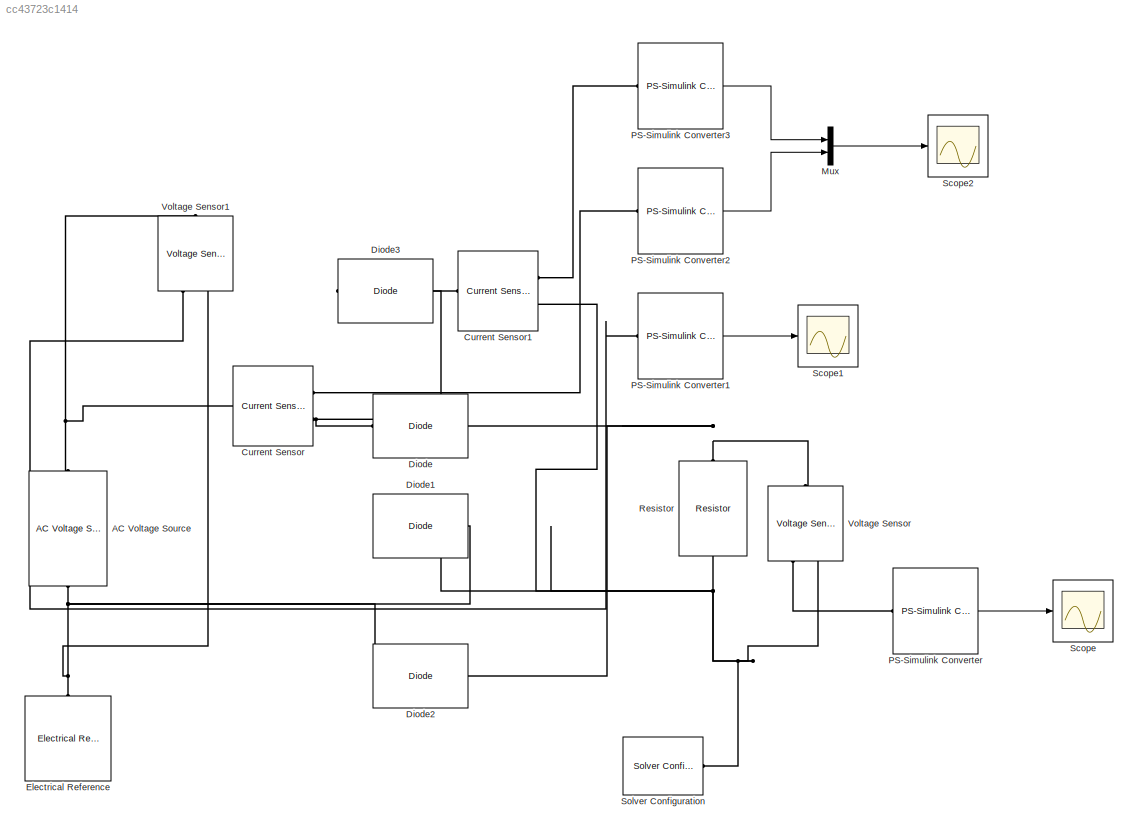
MODEL slx_cc43723c1414
KIND model
BLOCK [Reference] AC Voltage Source  REF=fl_lib/Electrical/Electrical Sources/AC Voltage Source
  ClassName = ac_voltage
  ComponentPath = foundation.electrical.sources.ac_voltage
  ComponentVariantNames = ac_voltage
  ComponentVariants = foundation.electrical.sources.ac_voltage
  Ports = [0, 0, 0, 0, 0, 1, 1]
  SchemaVersion = 1
  SourceBlock = fl_lib/Electrical/Electrical Sources/AC Voltage Source
  SourceFile = foundation.electrical.sources.ac_voltage
  SourceType = AC Voltage Source
  amp = 300
  amp_unit = V
  frequency = 50
  frequency_unit = Hz
  omega = 0
  omega_unit = rad/s
  shift = 0
  shift_unit = deg
BLOCK [Reference] Current Sensor  REF=fl_lib/Electrical/Electrical Sensors/Current Sensor
  ClassName = current
  ComponentPath = foundation.electrical.sensors.current
  ComponentVariantNames = current
  ComponentVariants = foundation.electrical.sensors.current
  Ports = [0, 0, 0, 0, 0, 1, 2]
  SchemaVersion = 1
  SourceBlock = fl_lib/Electrical/Electrical Sensors/Current Sensor
  SourceFile = foundation.electrical.sensors.current
  SourceType = Current Sensor
BLOCK [Reference] Current Sensor1  REF=fl_lib/Electrical/Electrical Sensors/Current Sensor
  ClassName = current
  ComponentPath = foundation.electrical.sensors.current
  ComponentVariantNames = current
  ComponentVariants = foundation.electrical.sensors.current
  Ports = [0, 0, 0, 0, 0, 1, 2]
  SchemaVersion = 1
  SourceBlock = fl_lib/Electrical/Electrical Sensors/Current Sensor
  SourceFile = foundation.electrical.sensors.current
  SourceType = Current Sensor
BLOCK [Reference] Diode  REF=pe_lib/Semiconductors/Fundamental
Components/Diode
  ClassName = diode
  ComponentPath = pe.semiconductors.fundamental.diode
  ComponentVariantNames = diode
  ComponentVariants = pe.semiconductors.fundamental.diode
  Goff = 1e-5
  Goff_equiv = 1e-5
  Goff_equiv_unit = 1/Ohm
  Goff_unit = 1/Ohm
  N_parallel = 1
  N_parallel_unit = 1
  N_series = 1
  N_series_unit = 1
  Ports = [0, 0, 0, 0, 0, 1, 1]
  Ron = 0.001
  Ron_equiv = 0.001
  Ron_equiv_unit = Ohm
  Ron_unit = Ohm
  SchemaVersion = 1
  SourceBlock = pe_lib/Semiconductors/Fundamental\nComponents/Diode
  SourceFile = pe.semiconductors.fundamental.diode
  SourceType = Diode
  Vf = 0.8
  Vf_equiv = 0.8
  Vf_equiv_unit = V
  Vf_unit = V
BLOCK [Reference] Diode1  REF=pe_lib/Semiconductors/Fundamental
Components/Diode
  ClassName = diode
  ComponentPath = pe.semiconductors.fundamental.diode
  ComponentVariantNames = diode
  ComponentVariants = pe.semiconductors.fundamental.diode
  Goff = 1e-5
  Goff_equiv = 1e-5
  Goff_equiv_unit = 1/Ohm
  Goff_unit = 1/Ohm
  N_parallel = 1
  N_parallel_unit = 1
  N_series = 1
  N_series_unit = 1
  Ports = [0, 0, 0, 0, 0, 1, 1]
  Ron = 0.001
  Ron_equiv = 0.001
  Ron_equiv_unit = Ohm
  Ron_unit = Ohm
  SchemaVersion = 1
  SourceBlock = pe_lib/Semiconductors/Fundamental\nComponents/Diode
  SourceFile = pe.semiconductors.fundamental.diode
  SourceType = Diode
  Vf = 0.8
  Vf_equiv = 0.8
  Vf_equiv_unit = V
  Vf_unit = V
BLOCK [Reference] Diode2  REF=pe_lib/Semiconductors/Fundamental
Components/Diode
  ClassName = diode
  ComponentPath = pe.semiconductors.fundamental.diode
  ComponentVariantNames = diode
  ComponentVariants = pe.semiconductors.fundamental.diode
  Goff = 1e-5
  Goff_equiv = 1e-5
  Goff_equiv_unit = 1/Ohm
  Goff_unit = 1/Ohm
  N_parallel = 1
  N_parallel_unit = 1
  N_series = 1
  N_series_unit = 1
  Ports = [0, 0, 0, 0, 0, 1, 1]
  Ron = 0.001
  Ron_equiv = 0.001
  Ron_equiv_unit = Ohm
  Ron_unit = Ohm
  SchemaVersion = 1
  SourceBlock = pe_lib/Semiconductors/Fundamental\nComponents/Diode
  SourceFile = pe.semiconductors.fundamental.diode
  SourceType = Diode
  Vf = 0.8
  Vf_equiv = 0.8
  Vf_equiv_unit = V
  Vf_unit = V
BLOCK [Reference] Diode3  REF=pe_lib/Semiconductors/Fundamental
Components/Diode
  ClassName = diode
  ComponentPath = pe.semiconductors.fundamental.diode
  ComponentVariantNames = diode
  ComponentVariants = pe.semiconductors.fundamental.diode
  Goff = 1e-5
  Goff_equiv = 1e-5
  Goff_equiv_unit = 1/Ohm
  Goff_unit = 1/Ohm
  N_parallel = 1
  N_parallel_unit = 1
  N_series = 1
  N_series_unit = 1
  Ports = [0, 0, 0, 0, 0, 1, 1]
  Ron = 0.001
  Ron_equiv = 0.001
  Ron_equiv_unit = Ohm
  Ron_unit = Ohm
  SchemaVersion = 1
  SourceBlock = pe_lib/Semiconductors/Fundamental\nComponents/Diode
  SourceFile = pe.semiconductors.fundamental.diode
  SourceType = Diode
  Vf = 0.8
  Vf_equiv = 0.8
  Vf_equiv_unit = V
  Vf_unit = V
BLOCK [Reference] Electrical Reference  REF=fl_lib/Electrical/Electrical Elements/Electrical Reference
  ClassName = reference
  ComponentPath = foundation.electrical.elements.reference
  ComponentVariantNames = reference
  ComponentVariants = foundation.electrical.elements.reference
  Ports = [0, 0, 0, 0, 0, 1]
  SchemaVersion = 1
  SourceBlock = fl_lib/Electrical/Electrical Elements/Electrical Reference
  SourceFile = foundation.electrical.elements.reference
  SourceType = Electrical Reference
BLOCK [Mux] Mux
  DisplayOption = bar
  Inputs = 2
  Ports = [2, 1]
BLOCK [Reference] PS-Simulink Converter  REF=nesl_utility/PS-Simulink
Converter
  AffineConversion = off
  Frequencies = []
  LeftPortType = input
  PhysicalDomain = network_engine_domain
  Ports = [0, 1, 0, 0, 0, 1]
  PseudoPeriodic = off
  RightPortType = output
  SourceBlock = nesl_utility/PS-Simulink\nConverter
  SourceType = PS-Simulink\nConverter
  SubClassName = ps_output
  Unit = 1
BLOCK [Reference] PS-Simulink Converter1  REF=nesl_utility/PS-Simulink
Converter
  AffineConversion = off
  Frequencies = []
  LeftPortType = input
  PhysicalDomain = network_engine_domain
  Ports = [0, 1, 0, 0, 0, 1]
  PseudoPeriodic = off
  RightPortType = output
  SourceBlock = nesl_utility/PS-Simulink\nConverter
  SourceType = PS-Simulink\nConverter
  SubClassName = ps_output
  Unit = 1
BLOCK [Reference] PS-Simulink Converter2  REF=nesl_utility/PS-Simulink
Converter
  AffineConversion = off
  Frequencies = []
  LeftPortType = input
  PhysicalDomain = network_engine_domain
  Ports = [0, 1, 0, 0, 0, 1]
  PseudoPeriodic = off
  RightPortType = output
  SourceBlock = nesl_utility/PS-Simulink\nConverter
  SourceType = PS-Simulink\nConverter
  SubClassName = ps_output
  Unit = 1
BLOCK [Reference] PS-Simulink Converter3  REF=nesl_utility/PS-Simulink
Converter
  AffineConversion = off
  Frequencies = []
  LeftPortType = input
  PhysicalDomain = network_engine_domain
  Ports = [0, 1, 0, 0, 0, 1]
  PseudoPeriodic = off
  RightPortType = output
  SourceBlock = nesl_utility/PS-Simulink\nConverter
  SourceType = PS-Simulink\nConverter
  SubClassName = ps_output
  Unit = 1
BLOCK [Reference] Resistor  REF=fl_lib/Electrical/Electrical Elements/Resistor
  ClassName = resistor
  ComponentPath = foundation.electrical.elements.resistor
  ComponentVariantNames = resistor
  ComponentVariants = foundation.electrical.elements.resistor
  Ports = [0, 0, 0, 0, 0, 1, 1]
  R = 50
  R_unit = Ohm
  SchemaVersion = 1
  SourceBlock = fl_lib/Electrical/Electrical Elements/Resistor
  SourceFile = foundation.electrical.elements.resistor
  SourceType = Resistor
  i = 0
  i_priority = High
  i_specify = off
  i_unit = A
  v = 0
  v_priority = High
  v_specify = off
  v_unit = V
BLOCK [Scope] Scope
  Floating = off
  NumInputPorts = 1
  Ports = [1]
  ShowLegends = off
BLOCK [Scope] Scope1
  Floating = off
  NumInputPorts = 1
  Ports = [1]
  SaveName = ScopeData1
  ShowLegends = off
BLOCK [Scope] Scope2
  Floating = off
  NumInputPorts = 1
  Ports = [1]
  SaveName = ScopeData2
  ShowLegends = off
BLOCK [Reference] Solver Configuration  REF=nesl_utility/Solver
Configuration
  AbsTol = 1e-06
  Accelerate = off
  AutomaticFiltering = on
  DelaysMemoryBudget = 1024
  DoDC = off
  DoFixedCost = off
  EnableSwitchedLinearOptims = on
  FilteringTimeConstant = 0.001
  FrequencyDomain = off
  Harmonics = []
  LeftPortType = input
  LinearAlgebra = Sparse
  LocalSolverChoice = NE_BACKWARD_EULER_ADVANCER
  LocalSolverSampleTime = 0.001
  MaxModeIter = 2
  MaxNonlinIter = 3
  MinStep = 1e-09
  PhysicalDomain = network_engine_domain
  Ports = [0, 0, 0, 0, 0, 0, 1]
  Profile = off
  RelTol = 0.001
  ResidualTolerance = 1e-09
  RightPortType = generic
  SimulateNoise = off
  SourceBlock = nesl_utility/Solver\nConfiguration
  SourceType = Solver\nConfiguration
  SubClassName = solver
  ToWorkspace = off
  Tones = []
  UseCCode = off
  UseLocalSampling = off
  UseLocalSolver = off
BLOCK [Reference] Voltage Sensor  REF=fl_lib/Electrical/Electrical Sensors/Voltage Sensor
  ClassName = voltage
  ComponentPath = foundation.electrical.sensors.voltage
  ComponentVariantNames = voltage
  ComponentVariants = foundation.electrical.sensors.voltage
  Ports = [0, 0, 0, 0, 0, 1, 2]
  SchemaVersion = 1
  SourceBlock = fl_lib/Electrical/Electrical Sensors/Voltage Sensor
  SourceFile = foundation.electrical.sensors.voltage
  SourceType = Voltage Sensor
BLOCK [Reference] Voltage Sensor1  REF=fl_lib/Electrical/Electrical Sensors/Voltage Sensor
  ClassName = voltage
  ComponentPath = foundation.electrical.sensors.voltage
  ComponentVariantNames = voltage
  ComponentVariants = foundation.electrical.sensors.voltage
  Ports = [0, 0, 0, 0, 0, 1, 2]
  SchemaVersion = 1
  SourceBlock = fl_lib/Electrical/Electrical Sensors/Voltage Sensor
  SourceFile = foundation.electrical.sensors.voltage
  SourceType = Voltage Sensor
LINE Mux:1 -> Scope2:1
LINE PS-Simulink Converter1:1 -> Scope1:1
LINE PS-Simulink Converter2:1 -> Mux:2
LINE PS-Simulink Converter3:1 -> Mux:1
LINE PS-Simulink Converter:1 -> Scope:1
PNET net1: AC Voltage Source:LConn1 -- Current Sensor:LConn1 -- Voltage Sensor1:LConn1
PNET net2: AC Voltage Source:RConn1 -- Diode1:RConn1 -- Diode2:LConn1 -- Electrical Reference:LConn1 -- Voltage Sensor1:RConn2
PLINE Current Sensor1:LConn1 -- Diode3:LConn1
PLINE Current Sensor1:RConn1 -- PS-Simulink Converter3:LConn1
PNET net3: Current Sensor1:RConn2 -- Diode1:LConn1 -- Resistor:RConn1 -- Solver Configuration:RConn1 -- Voltage Sensor:RConn2
PLINE Current Sensor:RConn1 -- PS-Simulink Converter2:LConn1
PNET net4: Current Sensor:RConn2 -- Diode3:RConn1 -- Diode:LConn1
PNET net5: Diode2:RConn1 -- Diode:RConn1 -- Resistor:LConn1 -- Voltage Sensor:LConn1
PLINE PS-Simulink Converter1:LConn1 -- Voltage Sensor1:RConn1
PLINE PS-Simulink Converter:LConn1 -- Voltage Sensor:RConn1
note: PNET lines group multi-terminal physical nets as a canonical sorted terminal list (undirected conserving connections); 2-terminal nets keep the pairwise PLINE form
